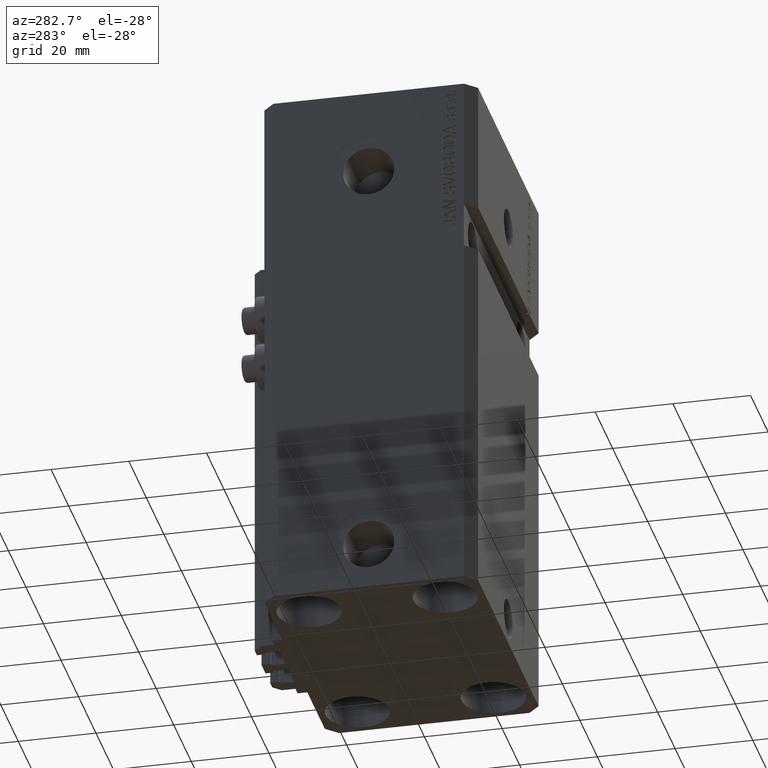
[diagram: clean part render]
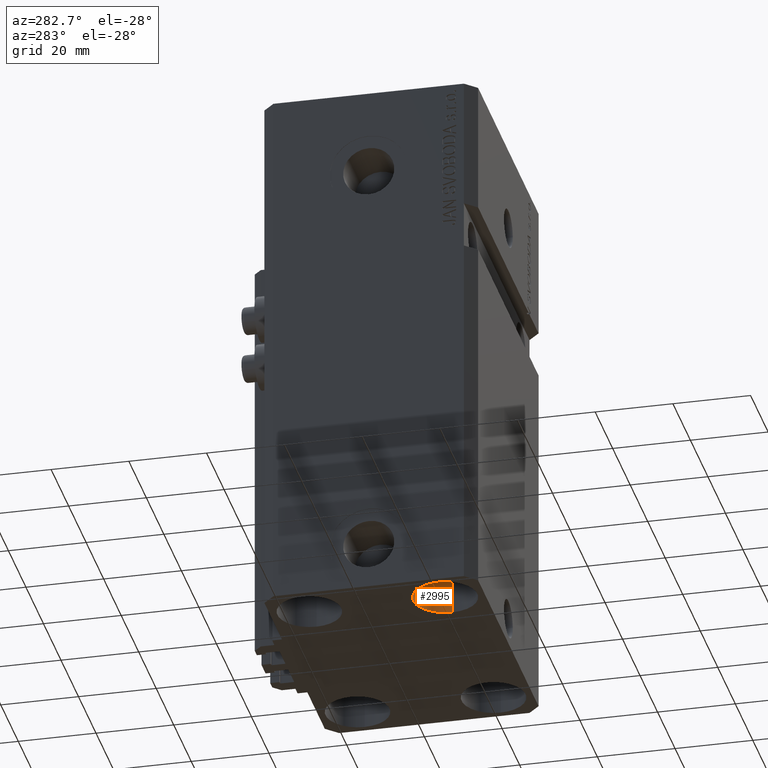
[diagram: same view with one face highlighted and labeled with its STEP entity id]
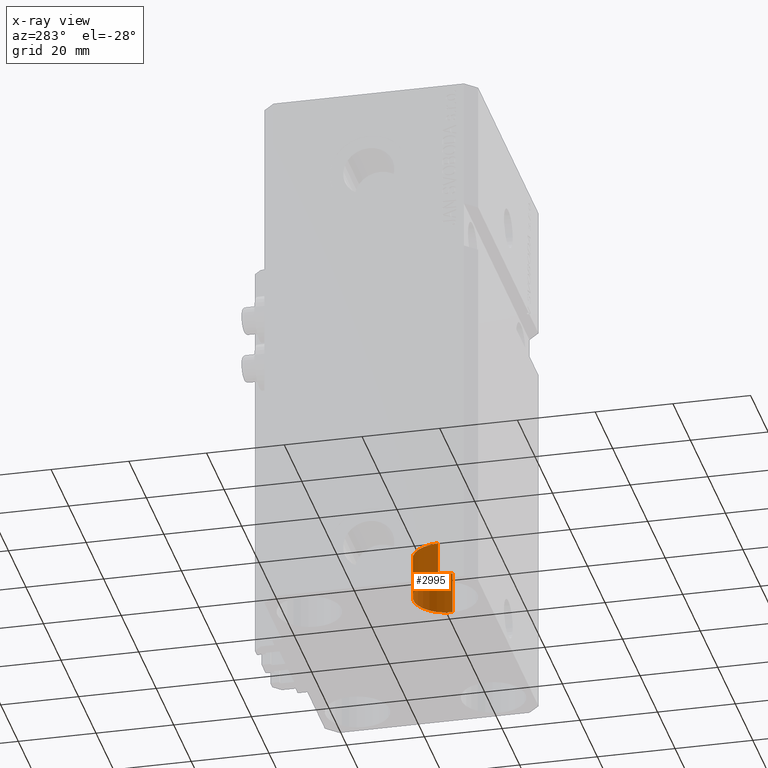
[diagram: x-ray of the same camera — body ghosted, the highlighted face saturated]
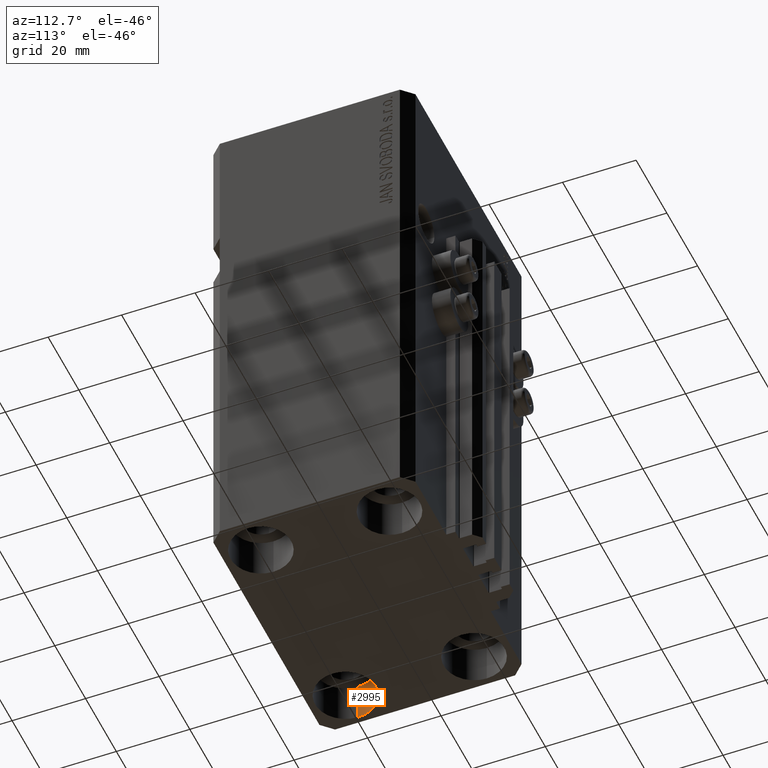
[diagram: same view with one face highlighted and labeled with its STEP entity id]
A machine part, auxiliary view. The second image highlights one B-rep face of the part: STEP entity #2995.
The next image is the same camera in x-ray: the body ghosted, the highlighted face saturated — about 0% of this face is hidden behind the body in this view.
A second angle (auxiliary view) of the same face is appended — the face is thin or edge-on in the first view.
In plain terms, the highlighted cylindrical surface (edge-blend (fillet) strip) has radius 8.25 mm, axis along (-0, -0, -1).
Its self-contained STEP definition (entity closure, byte-faithful):
#271 = EDGE_CURVE ( 'NONE', #13980, #13737, #18214, .T. ) ;
#903 = VERTEX_POINT ( 'NONE', #20142 ) ;
#2995 = ADVANCED_FACE ( 'NONE', ( #26264 ), #4730, .F. ) ;
#3252 = ORIENTED_EDGE ( 'NONE', *, *, #26126, .F. ) ;
#4730 = CYLINDRICAL_SURFACE ( 'NONE', #16976, 8.250000000000000000 ) ;
#5806 = VECTOR ( 'NONE', #25684, 1000.000000000000000 ) ;
#6375 = AXIS2_PLACEMENT_3D ( 'NONE', #10913, #46193, #46423 ) ;
#7324 = DIRECTION ( 'NONE',  ( -0.000000000000000000, -0.000000000000000000, -1.000000000000000000 ) ) ;
#9158 = EDGE_CURVE ( 'NONE', #13707, #13980, #25343, .T. ) ;
#10251 = AXIS2_PLACEMENT_3D ( 'NONE', #21619, #15222, #39588 ) ;
#10913 = CARTESIAN_POINT ( 'NONE',  ( -27.50000000000000355, -17.50000000000000000, -140.0000000000000000 ) ) ;
#11597 = VECTOR ( 'NONE', #7324, 1000.000000000000000 ) ;
#12316 = CARTESIAN_POINT ( 'NONE',  ( -27.50000000000000355, -17.50000000000000000, -129.0000000000000000 ) ) ;
#13707 = VERTEX_POINT ( 'NONE', #22965 ) ;
#13737 = VERTEX_POINT ( 'NONE', #19659 ) ;
#13980 = VERTEX_POINT ( 'NONE', #39202 ) ;
#14811 = LINE ( 'NONE', #43670, #5806 ) ;
#15203 = ORIENTED_EDGE ( 'NONE', *, *, #271, .T. ) ;
#15222 = DIRECTION ( 'NONE',  ( -0.000000000000000000, -0.000000000000000000, 1.000000000000000000 ) ) ;
#16976 = AXIS2_PLACEMENT_3D ( 'NONE', #12316, #27424, #24349 ) ;
#17354 = ORIENTED_EDGE ( 'NONE', *, *, #31848, .F. ) ;
#18214 = LINE ( 'NONE', #28151, #11597 ) ;
#19659 = CARTESIAN_POINT ( 'NONE',  ( -35.75000000000000711, -17.50000000000000000, -140.0000000000000000 ) ) ;
#20142 = CARTESIAN_POINT ( 'NONE',  ( -19.25000000000000355, -17.50000000000000000, -140.0000000000000000 ) ) ;
#21619 = CARTESIAN_POINT ( 'NONE',  ( -27.50000000000000355, -17.50000000000000000, -129.0000000000000000 ) ) ;
#22113 = EDGE_LOOP ( 'NONE', ( #17354, #39445, #15203, #3252 ) ) ;
#22965 = CARTESIAN_POINT ( 'NONE',  ( -19.25000000000000355, -17.50000000000000000, -129.0000000000000000 ) ) ;
#24349 = DIRECTION ( 'NONE',  ( -1.000000000000000000, 0.000000000000000000, 0.000000000000000000 ) ) ;
#25343 = CIRCLE ( 'NONE', #10251, 8.250000000000000000 ) ;
#25684 = DIRECTION ( 'NONE',  ( -0.000000000000000000, -0.000000000000000000, -1.000000000000000000 ) ) ;
#26126 = EDGE_CURVE ( 'NONE', #903, #13737, #26784, .T. ) ;
#26264 = FACE_OUTER_BOUND ( 'NONE', #22113, .T. ) ;
#26784 = CIRCLE ( 'NONE', #6375, 8.250000000000000000 ) ;
#27424 = DIRECTION ( 'NONE',  ( -0.000000000000000000, -0.000000000000000000, -1.000000000000000000 ) ) ;
#28151 = CARTESIAN_POINT ( 'NONE',  ( -35.75000000000000711, -17.50000000000000000, -129.0000000000000000 ) ) ;
#31848 = EDGE_CURVE ( 'NONE', #13707, #903, #14811, .T. ) ;
#39202 = CARTESIAN_POINT ( 'NONE',  ( -35.75000000000000711, -17.50000000000000000, -129.0000000000000000 ) ) ;
#39445 = ORIENTED_EDGE ( 'NONE', *, *, #9158, .T. ) ;
#39588 = DIRECTION ( 'NONE',  ( 1.000000000000000000, 0.000000000000000000, 0.000000000000000000 ) ) ;
#43670 = CARTESIAN_POINT ( 'NONE',  ( -19.25000000000000355, -17.50000000000000000, -129.0000000000000000 ) ) ;
#46193 = DIRECTION ( 'NONE',  ( -0.000000000000000000, -0.000000000000000000, 1.000000000000000000 ) ) ;
#46423 = DIRECTION ( 'NONE',  ( 1.000000000000000000, 0.000000000000000000, 0.000000000000000000 ) ) ;